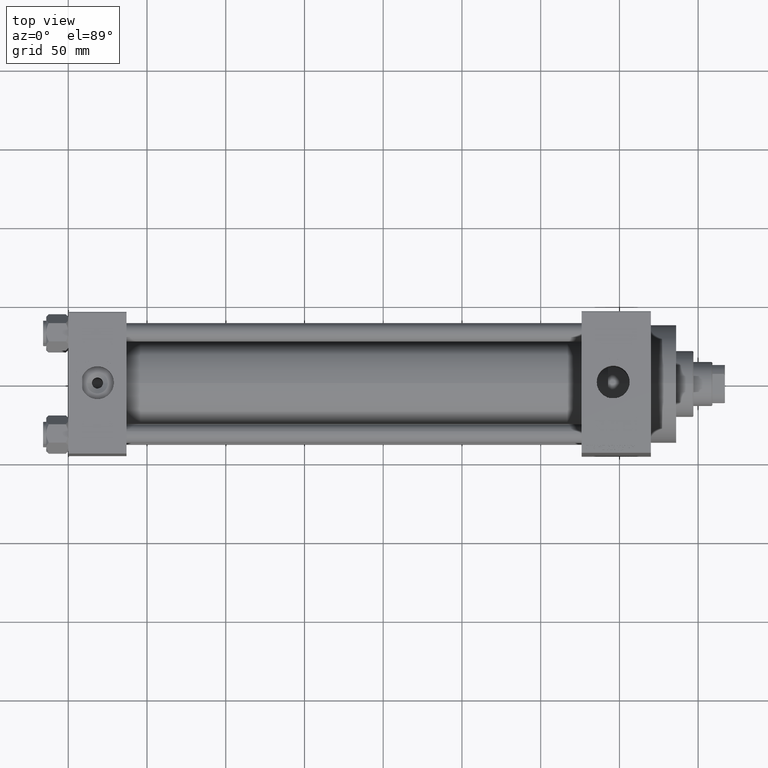
[diagram: clean part render]
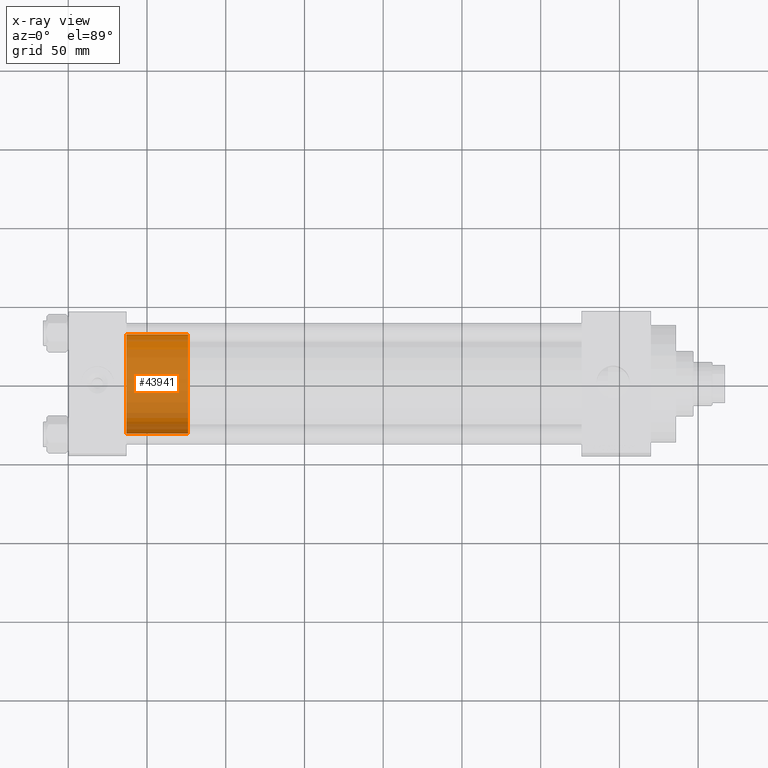
[diagram: x-ray — body ghosted, one internal face saturated and labeled with its STEP entity id]
A machine part, top view, then the same camera in x-ray: the body is ghosted and one INTERNAL B-rep face — a face not visible from any outside direction — is saturated and labeled: STEP entity #43941.
In plain terms, the highlighted cylindrical surface (partial cylindrical patch) has radius 31.5 mm, axis along (-1, 0, 0).
Its self-contained STEP definition (entity closure, byte-faithful):
#1200 = LINE ( 'NONE', #29527, #4173 ) ;
#4130 = CARTESIAN_POINT ( 'NONE',  ( 0.000000000000000000, 0.000000000000000000, 39.00000000000000000 ) ) ;
#4173 = VECTOR ( 'NONE', #44367, 1000.000000000000000 ) ;
#6353 = LINE ( 'NONE', #18111, #11319 ) ;
#6655 = AXIS2_PLACEMENT_3D ( 'NONE', #41142, #34192, #41383 ) ;
#7318 = ORIENTED_EDGE ( 'NONE', *, *, #24152, .F. ) ;
#8788 = FACE_OUTER_BOUND ( 'NONE', #17869, .T. ) ;
#11293 = VERTEX_POINT ( 'NONE', #16408 ) ;
#11319 = VECTOR ( 'NONE', #24822, 1000.000000000000000 ) ;
#14577 = CIRCLE ( 'NONE', #34451, 31.50000000000000000 ) ;
#15341 = EDGE_CURVE ( 'NONE', #17408, #25786, #6353, .T. ) ;
#16408 = CARTESIAN_POINT ( 'NONE',  ( 31.50000000000000000, 3.857637417314162689E-15, 0.000000000000000000 ) ) ;
#17408 = VERTEX_POINT ( 'NONE', #39131 ) ;
#17869 = EDGE_LOOP ( 'NONE', ( #7318, #20148, #36473, #21152 ) ) ;
#18111 = CARTESIAN_POINT ( 'NONE',  ( -31.50000000000000000, 0.000000000000000000, 39.00000000000000000 ) ) ;
#18503 = DIRECTION ( 'NONE',  ( 1.000000000000000000, 0.000000000000000000, 0.000000000000000000 ) ) ;
#18776 = DIRECTION ( 'NONE',  ( 0.000000000000000000, 0.000000000000000000, 1.000000000000000000 ) ) ;
#19821 = CYLINDRICAL_SURFACE ( 'NONE', #6655, 31.50000000000000000 ) ;
#20148 = ORIENTED_EDGE ( 'NONE', *, *, #34818, .T. ) ;
#21152 = ORIENTED_EDGE ( 'NONE', *, *, #15341, .F. ) ;
#21865 = DIRECTION ( 'NONE',  ( 0.000000000000000000, 0.000000000000000000, 1.000000000000000000 ) ) ;
#24152 = EDGE_CURVE ( 'NONE', #25961, #17408, #14577, .T. ) ;
#24822 = DIRECTION ( 'NONE',  ( -0.000000000000000000, -0.000000000000000000, -1.000000000000000000 ) ) ;
#25786 = VERTEX_POINT ( 'NONE', #34524 ) ;
#25961 = VERTEX_POINT ( 'NONE', #39070 ) ;
#29527 = CARTESIAN_POINT ( 'NONE',  ( 31.50000000000000000, 3.857637417314162689E-15, 39.00000000000000000 ) ) ;
#33371 = DIRECTION ( 'NONE',  ( 1.000000000000000000, 0.000000000000000000, 0.000000000000000000 ) ) ;
#34192 = DIRECTION ( 'NONE',  ( -0.000000000000000000, -0.000000000000000000, -1.000000000000000000 ) ) ;
#34451 = AXIS2_PLACEMENT_3D ( 'NONE', #4130, #18776, #33371 ) ;
#34524 = CARTESIAN_POINT ( 'NONE',  ( -31.50000000000000000, 0.000000000000000000, 0.000000000000000000 ) ) ;
#34818 = EDGE_CURVE ( 'NONE', #25961, #11293, #1200, .T. ) ;
#36473 = ORIENTED_EDGE ( 'NONE', *, *, #41496, .T. ) ;
#36699 = CARTESIAN_POINT ( 'NONE',  ( 0.000000000000000000, 0.000000000000000000, 0.000000000000000000 ) ) ;
#39070 = CARTESIAN_POINT ( 'NONE',  ( 31.50000000000000000, 3.857637417314162689E-15, 39.00000000000000000 ) ) ;
#39131 = CARTESIAN_POINT ( 'NONE',  ( -31.50000000000000000, 0.000000000000000000, 39.00000000000000000 ) ) ;
#41142 = CARTESIAN_POINT ( 'NONE',  ( 0.000000000000000000, 0.000000000000000000, 39.00000000000000000 ) ) ;
#41383 = DIRECTION ( 'NONE',  ( -1.000000000000000000, 0.000000000000000000, 0.000000000000000000 ) ) ;
#41496 = EDGE_CURVE ( 'NONE', #11293, #25786, #42534, .T. ) ;
#42534 = CIRCLE ( 'NONE', #47164, 31.50000000000000000 ) ;
#43941 = ADVANCED_FACE ( 'NONE', ( #8788 ), #19821, .T. ) ;
#44367 = DIRECTION ( 'NONE',  ( -0.000000000000000000, -0.000000000000000000, -1.000000000000000000 ) ) ;
#47164 = AXIS2_PLACEMENT_3D ( 'NONE', #36699, #21865, #18503 ) ;